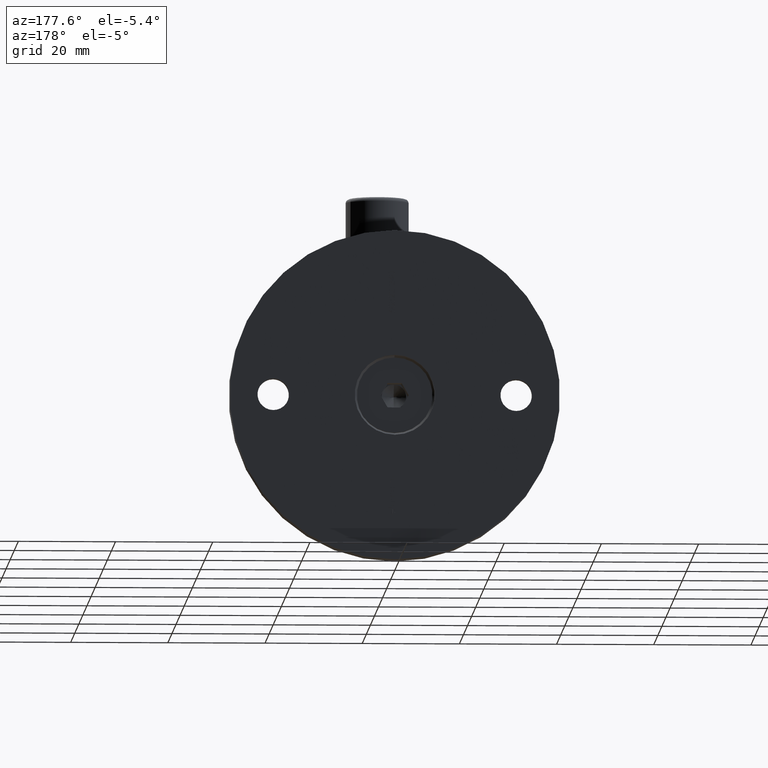
[diagram: clean part render]
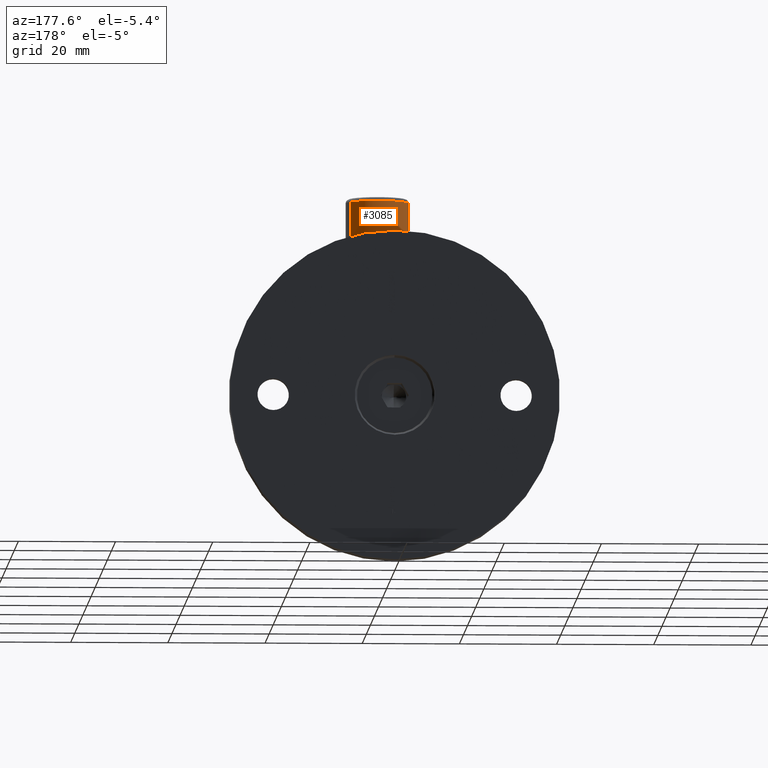
[diagram: same view with one face highlighted and labeled with its STEP entity id]
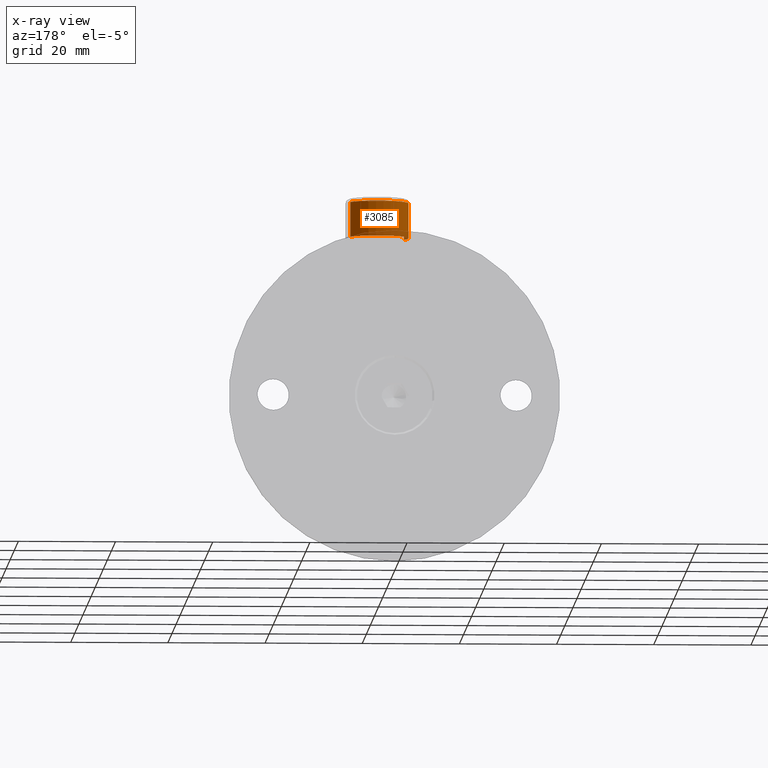
[diagram: x-ray of the same camera — body ghosted, the highlighted face saturated]
A machine part, auxiliary view. The second image highlights one B-rep face of the part: STEP entity #3085.
The next image is the same camera in x-ray: the body ghosted, the highlighted face saturated — about 12% of this face is hidden behind the body in this view.
In plain terms, the highlighted cylindrical surface (edge-blend (fillet) strip) has radius 6.5 mm, axis along (0, 0, 1).
Its self-contained STEP definition (entity closure, byte-faithful):
#494 = ORIENTED_EDGE ( 'NONE', *, *, #25343, .F. ) ;
#619 = LINE ( 'NONE', #19249, #16065 ) ;
#998 = ORIENTED_EDGE ( 'NONE', *, *, #2662, .T. ) ;
#2662 = EDGE_CURVE ( 'NONE', #3550, #4038, #20789, .T. ) ;
#2818 = CARTESIAN_POINT ( 'NONE',  ( 0.8000000000000020428, 0.000000000000000000, 6.500000000000002665 ) ) ;
#3085 = ADVANCED_FACE ( 'NONE', ( #17387 ), #16492, .T. ) ;
#3162 = VERTEX_POINT ( 'NONE', #9508 ) ;
#3550 = VERTEX_POINT ( 'NONE', #12135 ) ;
#3694 = CARTESIAN_POINT ( 'NONE',  ( 8.000000000000000000, 0.000000000000000000, 0.000000000000000000 ) ) ;
#3890 = DIRECTION ( 'NONE',  ( 0.000000000000000000, 0.000000000000000000, 1.000000000000000000 ) ) ;
#4000 = CARTESIAN_POINT ( 'NONE',  ( 0.8000000000000020428, 7.960204194457794491E-16, -6.500000000000000000 ) ) ;
#4038 = VERTEX_POINT ( 'NONE', #4000 ) ;
#5272 = ORIENTED_EDGE ( 'NONE', *, *, #8601, .T. ) ;
#5771 = DIRECTION ( 'NONE',  ( -1.000000000000000000, 0.000000000000000000, 0.000000000000000000 ) ) ;
#6087 = ORIENTED_EDGE ( 'NONE', *, *, #16349, .T. ) ;
#6777 = CIRCLE ( 'NONE', #7416, 6.500000000000002665 ) ;
#7416 = AXIS2_PLACEMENT_3D ( 'NONE', #23543, #7778, #3890 ) ;
#7458 = CARTESIAN_POINT ( 'NONE',  ( -31.74999999999995737, 0.000000000000000000, 0.000000000000000000 ) ) ;
#7778 = DIRECTION ( 'NONE',  ( 1.000000000000000000, -0.000000000000000000, -0.000000000000000000 ) ) ;
#8601 = EDGE_CURVE ( 'NONE', #4038, #18846, #6777, .T. ) ;
#8679 = AXIS2_PLACEMENT_3D ( 'NONE', #3694, #21864, #16507 ) ;
#9458 = DIRECTION ( 'NONE',  ( -1.000000000000000000, 0.000000000000000000, 0.000000000000000000 ) ) ;
#9508 = CARTESIAN_POINT ( 'NONE',  ( 8.000000000000000000, 0.000000000000000000, 6.500000000000002665 ) ) ;
#12135 = CARTESIAN_POINT ( 'NONE',  ( 8.000000000000000000, 7.960204194457794491E-16, -6.500000000000000000 ) ) ;
#14715 = EDGE_LOOP ( 'NONE', ( #6087, #998, #5272, #494 ) ) ;
#15037 = DIRECTION ( 'NONE',  ( -1.000000000000000000, 0.000000000000000000, 0.000000000000000000 ) ) ;
#15554 = VECTOR ( 'NONE', #9458, 1000.000000000000000 ) ;
#16065 = VECTOR ( 'NONE', #15037, 1000.000000000000000 ) ;
#16349 = EDGE_CURVE ( 'NONE', #3162, #3550, #21449, .T. ) ;
#16492 = CYLINDRICAL_SURFACE ( 'NONE', #23191, 6.500000000000002665 ) ;
#16507 = DIRECTION ( 'NONE',  ( 0.000000000000000000, 0.000000000000000000, 1.000000000000000000 ) ) ;
#17387 = FACE_OUTER_BOUND ( 'NONE', #14715, .T. ) ;
#17627 = CARTESIAN_POINT ( 'NONE',  ( -31.74999999999995737, 7.960204194457798435E-16, -6.500000000000002665 ) ) ;
#18846 = VERTEX_POINT ( 'NONE', #2818 ) ;
#19249 = CARTESIAN_POINT ( 'NONE',  ( -31.74999999999995737, 0.000000000000000000, 6.500000000000002665 ) ) ;
#19509 = DIRECTION ( 'NONE',  ( 0.000000000000000000, 0.000000000000000000, 1.000000000000000000 ) ) ;
#20789 = LINE ( 'NONE', #17627, #15554 ) ;
#21449 = CIRCLE ( 'NONE', #8679, 6.500000000000002665 ) ;
#21864 = DIRECTION ( 'NONE',  ( -1.000000000000000000, 0.000000000000000000, 0.000000000000000000 ) ) ;
#23191 = AXIS2_PLACEMENT_3D ( 'NONE', #7458, #5771, #19509 ) ;
#23543 = CARTESIAN_POINT ( 'NONE',  ( 0.8000000000000020428, 0.000000000000000000, 0.000000000000000000 ) ) ;
#25343 = EDGE_CURVE ( 'NONE', #3162, #18846, #619, .T. ) ;